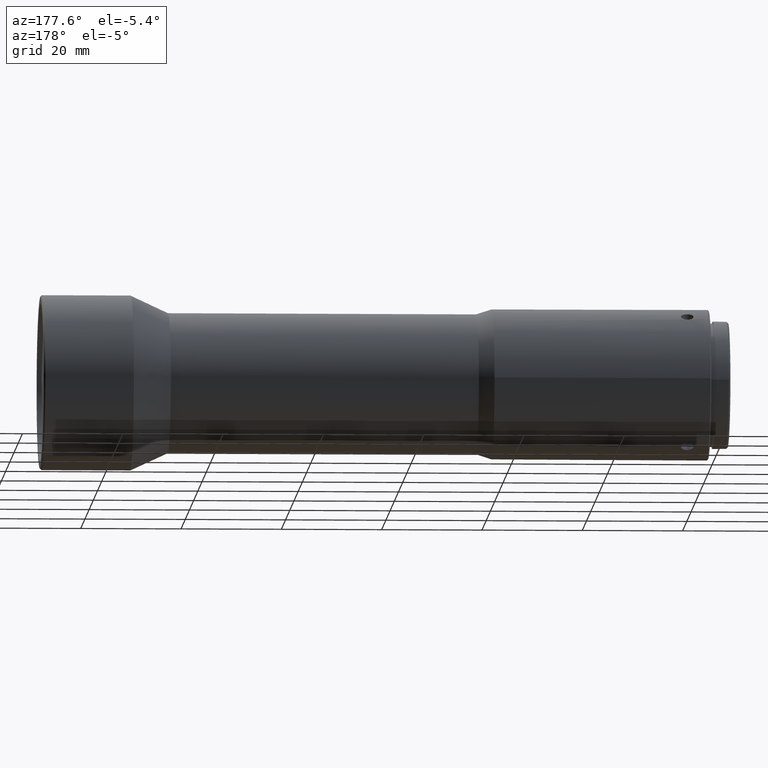
[diagram: clean part render]
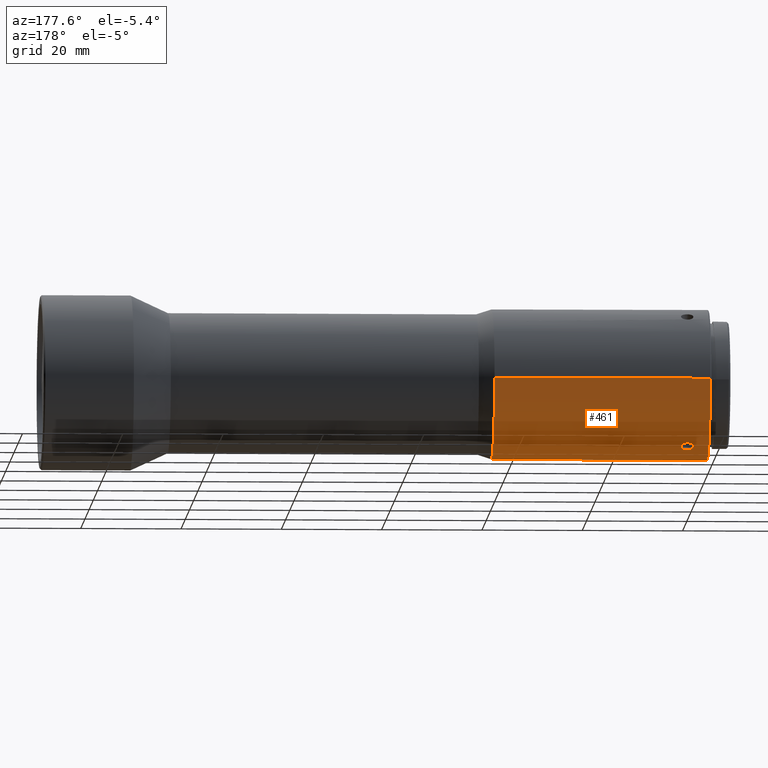
[diagram: same view with one face highlighted and labeled with its STEP entity id]
A machine part, auxiliary view. The second image highlights one B-rep face of the part: STEP entity #461.
In plain terms, the highlighted cylindrical surface (partial cylindrical patch) has radius 15 mm, axis along (-1, 0, 0).
Its self-contained STEP definition (entity closure, byte-faithful):
#12 = EDGE_CURVE ( 'NONE', #1213, #1195, #1216, .T. ) ;
#47 = EDGE_CURVE ( 'NONE', #1219, #1210, #303, .T. ) ;
#48 = EDGE_CURVE ( 'NONE', #1205, #1188, #291, .T. ) ;
#49 = EDGE_CURVE ( 'NONE', #1189, #1195, #261, .T. ) ;
#50 = EDGE_CURVE ( 'NONE', #1228, #1272, #260, .T. ) ;
#62 = EDGE_CURVE ( 'NONE', #1210, #1219, #298, .T. ) ;
#179 = CYLINDRICAL_SURFACE ( 'NONE', #387, 15.00000000000000000 ) ;
#181 = FACE_BOUND ( 'NONE', #1340, .T. ) ;
#191 = FACE_OUTER_BOUND ( 'NONE', #1335, .T. ) ;
#203 = CIRCLE ( 'NONE', #374, 15.00000000000000000 ) ;
#224 = VECTOR ( 'NONE', #820, 1000.000000000000000 ) ;
#230 = LINE ( 'NONE', #831, #224 ) ;
#235 = VECTOR ( 'NONE', #810, 1000.000000000000000 ) ;
#245 = LINE ( 'NONE', #744, #235 ) ;
#260 = CIRCLE ( 'NONE', #367, 15.00000000000000000 ) ;
#261 = CIRCLE ( 'NONE', #368, 15.00000000000000000 ) ;
#291 = B_SPLINE_CURVE_WITH_KNOTS ( 'NONE', 3,
 ( #1155, #1120, #502, #503, #504, #505, #506, #511, #512, #514 ),
 .UNSPECIFIED., .F., .F.,
 ( 4, 2, 2, 2, 4 ),
 ( 0.003908918099531449900, 0.004397751708292838500, 0.004886585317054227200, 0.005375418925815616700, 0.005864252534577005400 ),
 .UNSPECIFIED. ) ;
#298 = B_SPLINE_CURVE_WITH_KNOTS ( 'NONE', 3,
 ( #594, #815, #599, #600, #601, #874, #602, #604, #605, #606, #607, #609, #611, #612, #613, #617, #622, #928 ),
 .UNSPECIFIED., .F., .F.,
 ( 4, 2, 2, 2, 2, 2, 2, 2, 4 ),
 ( 0.0000000000000000000, 0.0004886147628306417100, 0.0009772295256612834100, 0.001465844288491925200, 0.001954459051322566800, 0.002443073814153206300, 0.002931688576983846100, 0.003420303339814485100, 0.003908918102645125000 ),
 .UNSPECIFIED. ) ;
#300 = B_SPLINE_CURVE_WITH_KNOTS ( 'NONE', 3,
 ( #777, #752, #633, #784, #786, #788, #904, #791, #794, #795 ),
 .UNSPECIFIED., .F., .F.,
 ( 4, 2, 2, 2, 4 ),
 ( 0.001955331498586197800, 0.002443728148822510800, 0.002932124799058823800, 0.003420521449295136800, 0.003908918099531449900 ),
 .UNSPECIFIED. ) ;
#303 = B_SPLINE_CURVE_WITH_KNOTS ( 'NONE', 3,
 ( #1161, #1154, #1151, #1162, #1163, #1164, #1165, #1166, #1167, #1168, #1169, #1172, #1173, #1175, #1177, #1178, #1179, #1181 ),
 .UNSPECIFIED., .F., .F.,
 ( 4, 2, 2, 2, 2, 2, 2, 2, 4 ),
 ( 0.003908918102645125000, 0.004397533598767427500, 0.004886149094889730000, 0.005374764591012032500, 0.005863380087134337600, 0.006351995583256641800, 0.006840611079378946900, 0.007329226575501252000, 0.007817842071623556200 ),
 .UNSPECIFIED. ) ;
#316 = EDGE_CURVE ( 'NONE', #1213, #1205, #300, .T. ) ;
#326 = EDGE_CURVE ( 'NONE', #1272, #1188, #245, .T. ) ;
#367 = AXIS2_PLACEMENT_3D ( 'NONE', #527, #534, #535 ) ;
#368 = AXIS2_PLACEMENT_3D ( 'NONE', #523, #524, #525 ) ;
#374 = AXIS2_PLACEMENT_3D ( 'NONE', #971, #580, #578 ) ;
#379 = EDGE_CURVE ( 'NONE', #1370, #1189, #230, .T. ) ;
#387 = AXIS2_PLACEMENT_3D ( 'NONE', #790, #516, #518 ) ;
#433 = EDGE_CURVE ( 'NONE', #1370, #1228, #203, .T. ) ;
#461 = ADVANCED_FACE ( 'NONE', ( #191, #181 ), #179, .T. ) ;
#502 = CARTESIAN_POINT ( 'NONE',  ( -96.10250774137912800, -14.95064722313711400, -1.217421188890824000 ) ) ;
#503 = CARTESIAN_POINT ( 'NONE',  ( -95.79970554626223100, -14.96034332191789700, -1.091830770863487600 ) ) ;
#504 = CARTESIAN_POINT ( 'NONE',  ( -95.66105090763923600, -14.96714883405624300, -0.9989026422530548100 ) ) ;
#505 = CARTESIAN_POINT ( 'NONE',  ( -95.43053142172030300, -14.98076096041576500, -0.7682133534208542800 ) ) ;
#506 = CARTESIAN_POINT ( 'NONE',  ( -95.33742441339660400, -14.98757357151715800, -0.6287313230282201000 ) ) ;
#511 = CARTESIAN_POINT ( 'NONE',  ( -95.21279871073348000, -14.99717370466149000, -0.3277888198314689000 ) ) ;
#512 = CARTESIAN_POINT ( 'NONE',  ( -95.18000000000002100, -14.99999999999999300, -0.1631783459040590000 ) ) ;
#514 = CARTESIAN_POINT ( 'NONE',  ( -95.18000000000002100, -14.99999999999999100, -2.067426938880597200E-023 ) ) ;
#516 = DIRECTION ( 'NONE',  ( -1.000000000000000000, 2.312964634635743400E-016, 0.0000000000000000000 ) ) ;
#518 = DIRECTION ( 'NONE',  ( -4.625929269271485900E-016, -1.000000000000000000, 0.0000000000000000000 ) ) ;
#523 = CARTESIAN_POINT ( 'NONE',  ( -100.7300000000000000, 0.0000000000000000000, 0.0000000000000000000 ) ) ;
#524 = DIRECTION ( 'NONE',  ( -1.000000000000000000, 0.0000000000000000000, 0.0000000000000000000 ) ) ;
#525 = DIRECTION ( 'NONE',  ( 0.0000000000000000000, 0.0000000000000000000, 1.000000000000000000 ) ) ;
#527 = CARTESIAN_POINT ( 'NONE',  ( -57.70000000000008800, 0.0000000000000000000, 0.0000000000000000000 ) ) ;
#534 = DIRECTION ( 'NONE',  ( -1.000000000000000000, 0.0000000000000000000, 0.0000000000000000000 ) ) ;
#535 = DIRECTION ( 'NONE',  ( 5.551115123125782700E-015, -1.000000000000000000, 0.0000000000000000000 ) ) ;
#578 = DIRECTION ( 'NONE',  ( 5.551115123125782700E-015, -1.000000000000000000, 0.0000000000000000000 ) ) ;
#580 = DIRECTION ( 'NONE',  ( -1.000000000000000000, 0.0000000000000000000, 0.0000000000000000000 ) ) ;
#594 = CARTESIAN_POINT ( 'NONE',  ( -96.43000000347289800, 6.391381209034458200, -13.57019698722934500 ) ) ;
#599 = CARTESIAN_POINT ( 'NONE',  ( -96.75734310031302200, 6.420977973627532100, -13.55636388835706200 ) ) ;
#600 = CARTESIAN_POINT ( 'NONE',  ( -97.06003828563156300, 6.534494394985782300, -13.50201255418097400 ) ) ;
#601 = CARTESIAN_POINT ( 'NONE',  ( -97.19864938646219300, 6.618301778941769500, -13.46147880456716600 ) ) ;
#602 = CARTESIAN_POINT ( 'NONE',  ( -97.52227433344158700, 6.948841582274834400, -13.29421811582580300 ) ) ;
#604 = CARTESIAN_POINT ( 'NONE',  ( -97.64700176741692400, 7.214095554292265800, -13.15216560039613800 ) ) ;
#605 = CARTESIAN_POINT ( 'NONE',  ( -97.67988569647219800, 7.357990455751140900, -13.07235930651049000 ) ) ;
#606 = CARTESIAN_POINT ( 'NONE',  ( -97.68011369269331100, 7.640496249443422100, -12.90927644942494000 ) ) ;
#607 = CARTESIAN_POINT ( 'NONE',  ( -97.64778120035227000, 7.781015948917707100, -12.82492605263237500 ) ) ;
#609 = CARTESIAN_POINT ( 'NONE',  ( -97.52265034798709600, 8.038383236706675200, -12.66520163252971900 ) ) ;
#611 = CARTESIAN_POINT ( 'NONE',  ( -97.43109431870185200, 8.154246526715491300, -12.59054976918207600 ) ) ;
#612 = CARTESIAN_POINT ( 'NONE',  ( -97.19790283514056700, 8.349590443791317500, -12.46186259471879000 ) ) ;
#613 = CARTESIAN_POINT ( 'NONE',  ( -97.06044070519566000, 8.425652838326559600, -12.41017095101521600 ) ) ;
#617 = CARTESIAN_POINT ( 'NONE',  ( -96.75768660687441500, 8.529596381916560300, -12.33896082930074700 ) ) ;
#622 = CARTESIAN_POINT ( 'NONE',  ( -96.59522196192611400, 8.556444718055614000, -12.32019698652818500 ) ) ;
#633 = CARTESIAN_POINT ( 'NONE',  ( -97.64758498138063200, -14.99720357609466800, -0.3267944026593618800 ) ) ;
#658 = CARTESIAN_POINT ( 'NONE',  ( -57.70000000000008800, 15.00000000000000000, 1.836970198721029600E-015 ) ) ;
#680 = CARTESIAN_POINT ( 'NONE',  ( -57.70000000000000300, -15.00000000000000000, 0.0000000000000000000 ) ) ;
#703 = CARTESIAN_POINT ( 'NONE',  ( -57.70000000000008800, 1.836970198721033100E-015, -15.00000000000002700 ) ) ;
#705 = CARTESIAN_POINT ( 'NONE',  ( -96.43000000000002100, 8.556444718801326800, -12.32019698601028800 ) ) ;
#707 = CARTESIAN_POINT ( 'NONE',  ( -97.68000000000002100, -14.99999999999999100, 2.067426938880597200E-023 ) ) ;
#710 = CARTESIAN_POINT ( 'NONE',  ( -96.43000000347289800, 6.391381209034458200, -13.57019698722934500 ) ) ;
#714 = CARTESIAN_POINT ( 'NONE',  ( -96.43000000000002100, -14.94782592887673900, -1.250000000000000000 ) ) ;
#726 = CARTESIAN_POINT ( 'NONE',  ( -100.7300000000000000, -15.00000000000001400, 1.836970198721031200E-015 ) ) ;
#731 = CARTESIAN_POINT ( 'NONE',  ( -100.7300000000000000, 14.99999999999998600, 0.0000000000000000000 ) ) ;
#732 = CARTESIAN_POINT ( 'NONE',  ( -95.18000000000002100, -14.99999999999999100, -2.067426938880597200E-023 ) ) ;
#744 = CARTESIAN_POINT ( 'NONE',  ( -57.70000000000001000, -15.00000000000000000, 0.0000000000000000000 ) ) ;
#752 = CARTESIAN_POINT ( 'NONE',  ( -97.68000000000002100, -14.99999999999999100, -0.1630327277991187900 ) ) ;
#777 = CARTESIAN_POINT ( 'NONE',  ( -97.68000000000002100, -14.99999999999999100, 2.067426938880597200E-023 ) ) ;
#784 = CARTESIAN_POINT ( 'NONE',  ( -97.52234351896527200, -14.98755538036034600, -0.6293595197244080700 ) ) ;
#786 = CARTESIAN_POINT ( 'NONE',  ( -97.43077807935119900, -14.98083811079270200, -0.7669088572182175500 ) ) ;
#788 = CARTESIAN_POINT ( 'NONE',  ( -97.19759438063320500, -14.96706901403374000, -1.000252381256838500 ) ) ;
#790 = CARTESIAN_POINT ( 'NONE',  ( -57.70000000000000300, 0.0000000000000000000, 0.0000000000000000000 ) ) ;
#791 = CARTESIAN_POINT ( 'NONE',  ( -96.75754348681336100, -14.95064919129298700, -1.217394960658441100 ) ) ;
#794 = CARTESIAN_POINT ( 'NONE',  ( -96.59514820878584400, -14.94782592895428200, -1.249999999072729500 ) ) ;
#795 = CARTESIAN_POINT ( 'NONE',  ( -96.43000000000002100, -14.94782592887673900, -1.250000000000000000 ) ) ;
#810 = DIRECTION ( 'NONE',  ( -1.000000000000000000, 2.312964634635743400E-016, 0.0000000000000000000 ) ) ;
#815 = CARTESIAN_POINT ( 'NONE',  ( -96.59522220577797200, 6.391381209451190600, -13.57019698703307100 ) ) ;
#820 = DIRECTION ( 'NONE',  ( -1.000000000000000000, 2.312964634635743400E-016, 0.0000000000000000000 ) ) ;
#831 = CARTESIAN_POINT ( 'NONE',  ( -57.69999999999999600, 15.00000000000000000, 1.836970198721029600E-015 ) ) ;
#874 = CARTESIAN_POINT ( 'NONE',  ( -97.42915104449852500, 6.824732801205409600, -13.35800704577991700 ) ) ;
#895 = DIRECTION ( 'NONE',  ( -1.000000000000000000, 2.312964634635743400E-016, 0.0000000000000000000 ) ) ;
#900 = CARTESIAN_POINT ( 'NONE',  ( -57.70000000000001000, -15.00000000000000000, 0.0000000000000000000 ) ) ;
#904 = CARTESIAN_POINT ( 'NONE',  ( -97.06017837631296200, -14.96033927728004900, -1.091883894934799100 ) ) ;
#928 = CARTESIAN_POINT ( 'NONE',  ( -96.43000000000002100, 8.556444718801326800, -12.32019698601028800 ) ) ;
#971 = CARTESIAN_POINT ( 'NONE',  ( -57.70000000000008800, 0.0000000000000000000, 0.0000000000000000000 ) ) ;
#1120 = CARTESIAN_POINT ( 'NONE',  ( -96.26470405052221200, -14.94782592879912800, -1.250000000928099600 ) ) ;
#1151 = CARTESIAN_POINT ( 'NONE',  ( -96.10265690797979200, 8.529666524784905900, -12.33891198555392100 ) ) ;
#1154 = CARTESIAN_POINT ( 'NONE',  ( -96.26477780380594100, 8.556444719547036100, -12.32019698549238400 ) ) ;
#1155 = CARTESIAN_POINT ( 'NONE',  ( -96.43000000000002100, -14.94782592887673900, -1.250000000000000000 ) ) ;
#1161 = CARTESIAN_POINT ( 'NONE',  ( -96.43000000000002100, 8.556444718801326800, -12.32019698601028800 ) ) ;
#1162 = CARTESIAN_POINT ( 'NONE',  ( -95.79996172038139000, 8.425838679025254400, -12.41004442241543500 ) ) ;
#1163 = CARTESIAN_POINT ( 'NONE',  ( -95.66135061826740600, 8.348831730330932300, -12.46235687105758300 ) ) ;
#1164 = CARTESIAN_POINT ( 'NONE',  ( -95.43084895812806700, 8.156007047383466700, -12.58939550121482000 ) ) ;
#1165 = CARTESIAN_POINT ( 'NONE',  ( -95.33772566822311500, 8.038709822640703000, -12.66498239376106300 ) ) ;
#1166 = CARTESIAN_POINT ( 'NONE',  ( -95.21299823295990400, 7.783061748516209000, -12.82367281498095900 ) ) ;
#1167 = CARTESIAN_POINT ( 'NONE',  ( -95.18011430354191300, 7.642000019226150800, -12.90838630859349600 ) ) ;
#1168 = CARTESIAN_POINT ( 'NONE',  ( -95.17988630729284700, 7.359513223621610800, -13.07150207501323400 ) ) ;
#1169 = CARTESIAN_POINT ( 'NONE',  ( -95.21221879990581300, 7.216203786848970100, -13.15102050639872600 ) ) ;
#1172 = CARTESIAN_POINT ( 'NONE',  ( -95.33734965367115400, 6.949194736040144700, -13.29404490640998100 ) ) ;
#1173 = CARTESIAN_POINT ( 'NONE',  ( -95.42890568363090200, 6.826612680778916700, -13.35705952728434600 ) ) ;
#1175 = CARTESIAN_POINT ( 'NONE',  ( -95.66209716986216400, 6.617494359322524400, -13.46188873498528500 ) ) ;
#1177 = CARTESIAN_POINT ( 'NONE',  ( -95.79955930095781000, 6.534696885787880700, -13.50191487886838500 ) ) ;
#1178 = CARTESIAN_POINT ( 'NONE',  ( -96.10231340111097600, 6.421055340844204400, -13.55632756668078000 ) ) ;
#1179 = CARTESIAN_POINT ( 'NONE',  ( -96.26477755320958400, 6.391381208617725700, -13.57019698742561800 ) ) ;
#1181 = CARTESIAN_POINT ( 'NONE',  ( -96.43000000347289800, 6.391381209034458200, -13.57019698722934500 ) ) ;
#1188 = VERTEX_POINT ( 'NONE', #732 ) ;
#1189 = VERTEX_POINT ( 'NONE', #731 ) ;
#1195 = VERTEX_POINT ( 'NONE', #726 ) ;
#1205 = VERTEX_POINT ( 'NONE', #714 ) ;
#1206 = VECTOR ( 'NONE', #895, 1000.000000000000000 ) ;
#1210 = VERTEX_POINT ( 'NONE', #710 ) ;
#1213 = VERTEX_POINT ( 'NONE', #707 ) ;
#1216 = LINE ( 'NONE', #900, #1206 ) ;
#1219 = VERTEX_POINT ( 'NONE', #705 ) ;
#1228 = VERTEX_POINT ( 'NONE', #703 ) ;
#1260 = ORIENTED_EDGE ( 'NONE', *, *, #49, .F. ) ;
#1272 = VERTEX_POINT ( 'NONE', #680 ) ;
#1275 = ORIENTED_EDGE ( 'NONE', *, *, #433, .T. ) ;
#1277 = ORIENTED_EDGE ( 'NONE', *, *, #326, .T. ) ;
#1283 = ORIENTED_EDGE ( 'NONE', *, *, #47, .F. ) ;
#1335 = EDGE_LOOP ( 'NONE', ( #1481, #1275, #1448, #1277, #1436, #1369, #1446, #1260 ) ) ;
#1340 = EDGE_LOOP ( 'NONE', ( #1441, #1283 ) ) ;
#1369 = ORIENTED_EDGE ( 'NONE', *, *, #316, .F. ) ;
#1370 = VERTEX_POINT ( 'NONE', #658 ) ;
#1436 = ORIENTED_EDGE ( 'NONE', *, *, #48, .F. ) ;
#1441 = ORIENTED_EDGE ( 'NONE', *, *, #62, .F. ) ;
#1446 = ORIENTED_EDGE ( 'NONE', *, *, #12, .T. ) ;
#1448 = ORIENTED_EDGE ( 'NONE', *, *, #50, .T. ) ;
#1481 = ORIENTED_EDGE ( 'NONE', *, *, #379, .F. ) ;